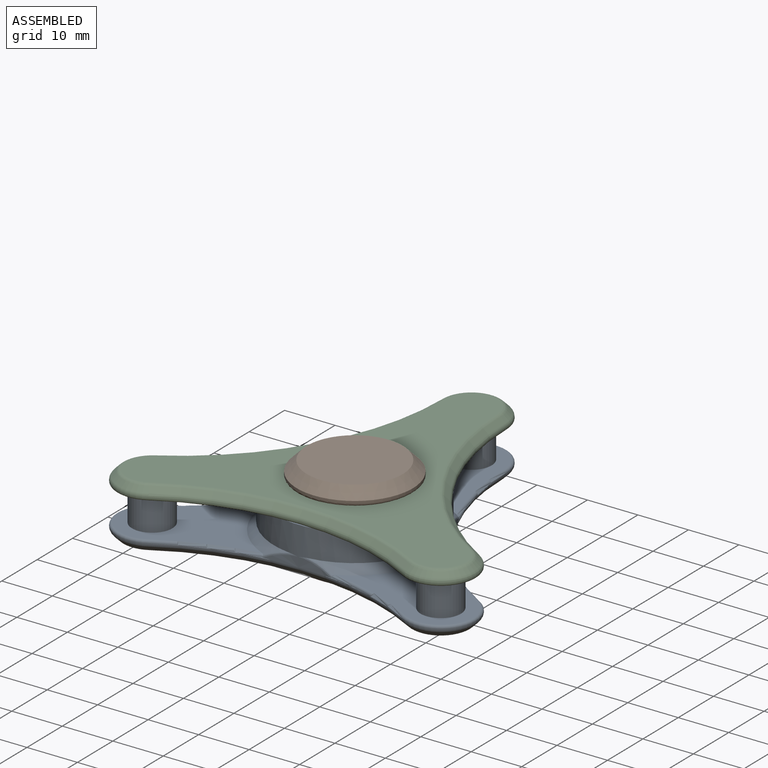
[diagram: assembled view]
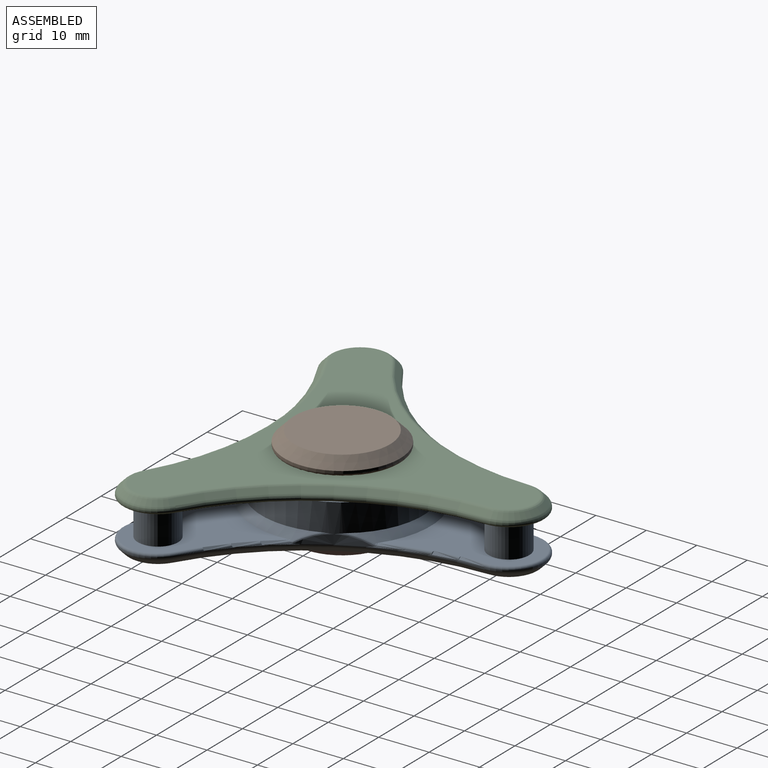
[diagram: assembled view, second angle]
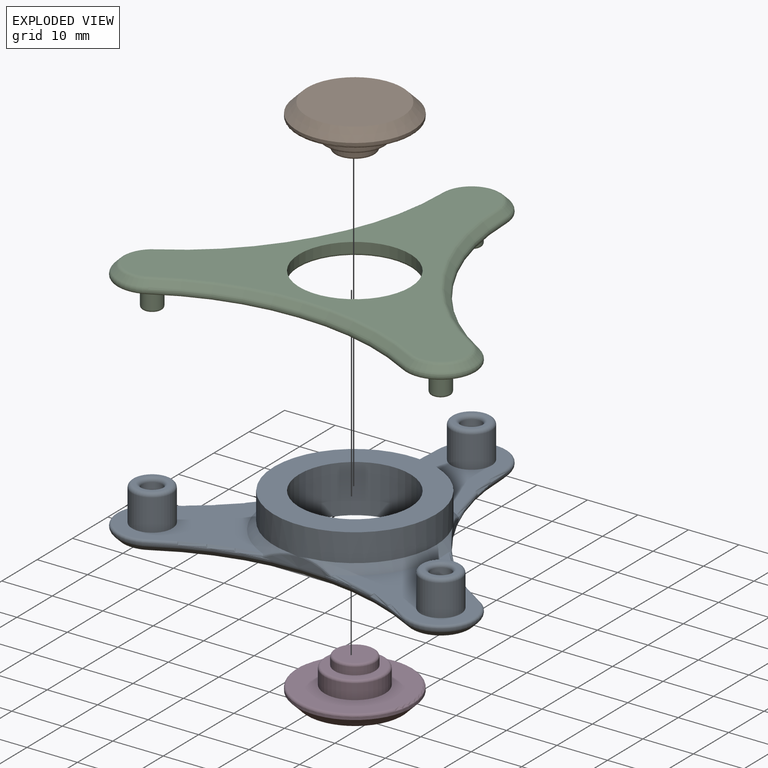
[diagram: exploded view]
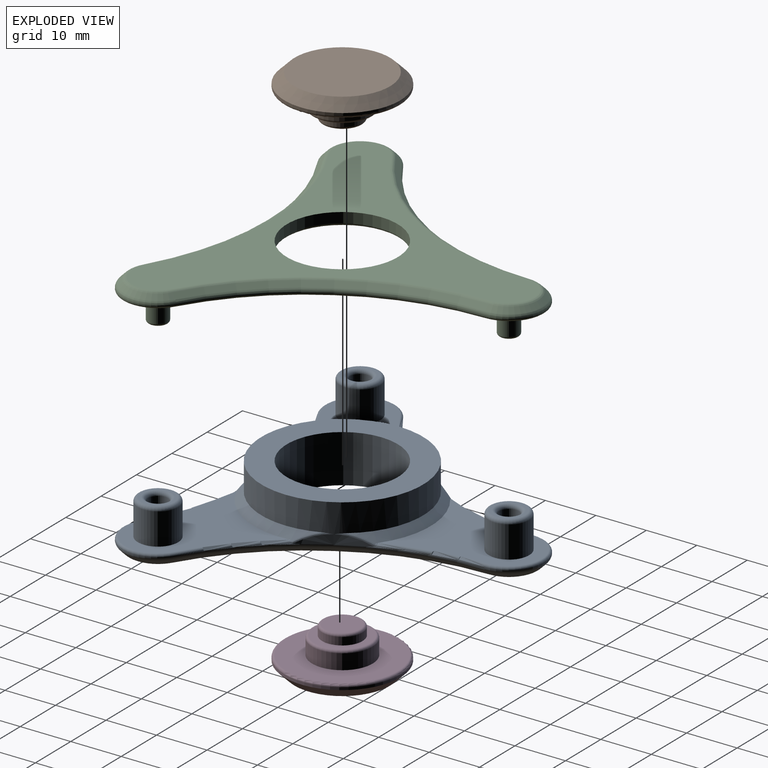
[diagram: exploded view, second angle]
ASSEMBLY  parts=4 mates=3
PART A: 91 faces, bbox 72.3x64.7x9.5 mm
  f0: cylinder r=7mm len=13.04mm, axis (0,0,1), area 1.9mm2, adj f1,f2,f59,f81
  f1: cylinder r=50mm len=25.01mm, axis (0,0,1), area 10.1mm2, adj f0,f7,f57,f58,f83
  f2: cylinder r=50mm len=18.4mm, axis (0,0,1), area 10.1mm2, adj f0,f7,f60,f61,f79
  f3: plane 67.35x59.69mm, normal (0,0,-1), area 1154.2mm2, adj f16,f67,f68,f69,f70,f71,f72,f73
  f4: plane 27.92x24.78mm, normal (0,0,1), area 261.4mm2, adj f5,f36,f58,f59,f61
  f5: cylinder r=4mm len=8mm, axis (0,0,-1), area 157.6mm2, adj f4,f46
  f6: plane 6.5x6.5mm, normal (0,0,1), area 9.4mm2, adj f43,f46
  f7: cylinder r=16.01mm len=32.02mm, axis (0,0,1), area 557.5mm2, adj f1,f2,f9,f10,f13,f14,f17,f34
  f8: cylinder r=7mm len=13.06mm, axis (0,0,1), area 1.9mm2, adj f9,f10,f65,f89
  f9: cylinder r=50mm len=18.38mm, axis (0,0,1), area 10.1mm2, adj f7,f8,f64,f66,f90
  f10: cylinder r=50mm len=25.04mm, axis (0,0,1), area 10.1mm2, adj f7,f8,f62,f63,f87
  f11: plane 27.92x24.78mm, normal (0,0,1), area 261.4mm2, adj f20,f35,f63,f65,f66
  f12: cylinder r=7mm len=14mm, axis (0,0,1), area 1.9mm2, adj f13,f14,f54,f82,f84
  f13: cylinder r=50mm len=24.94mm, axis (0,0,1), area 10.1mm2, adj f7,f12,f52,f53,f82
  f14: cylinder r=50mm len=24.97mm, axis (0,0,1), area 10.1mm2, adj f7,f12,f55,f56,f86
  f15: plane 25.31x20.5mm, normal (0,0,1), area 261.4mm2, adj f18,f34,f53,f54,f56
  f16: cylinder r=11.01mm len=22.02mm, axis (0,0,1), area 658.6mm2, adj f3,f17
  f17: plane 32.02x32.02mm, normal (0,0,1), area 424.4mm2, adj f7,f16
  f18: cylinder r=4mm len=8mm, axis (0,0,-1), area 157.6mm2, adj f15,f48
  f19: plane 6.5x6.5mm, normal (0,0,1), area 9.4mm2, adj f45,f48
  f20: cylinder r=4mm len=8mm, axis (0,0,-1), area 157.6mm2, adj f11,f47
  f21: plane 6.5x6.5mm, normal (0,0,1), area 9.4mm2, adj f44,f47
  f22: cone r=50mm half-angle=45deg, axis (0,0,-1), area 34.4mm2, adj f23,f24,f68,f79
  f23: cone r=16.01mm half-angle=45deg, axis (0,0,1), area 0.2mm2, adj f22,f25,f67,f80
  f24: cone r=5.5mm half-angle=45deg, axis (0,0,1), area 25.4mm2, adj f22,f26,f70,f81,f83
  f25: cone r=50mm half-angle=45deg, axis (0,0,-1), area 34.3mm2, adj f23,f27,f69,f82
  f26: cone r=50mm half-angle=45deg, axis (0,0,-1), area 34.3mm2, adj f24,f28,f72,f83
  f27: cone r=5.5mm half-angle=45deg, axis (0,0,1), area 25.3mm2, adj f25,f29,f71,f84
  f28: cone r=16.01mm half-angle=45deg, axis (0,0,1), area 0.2mm2, adj f26,f30,f74,f85
  f29: cone r=50mm half-angle=45deg, axis (0,0,-1), area 34.4mm2, adj f27,f31,f73,f86
  f30: cone r=50mm half-angle=45deg, axis (0,0,-1), area 34.4mm2, adj f28,f32,f76,f87
  f31: cone r=16.01mm half-angle=45deg, axis (0,0,1), area 0.2mm2, adj f29,f33,f75,f88
  f32: cone r=5.5mm half-angle=45deg, axis (0,0,1), area 25.4mm2, adj f30,f33,f78,f89,f90
  f33: cone r=50mm half-angle=45deg, axis (0,0,-1), area 34.3mm2, adj f31,f32,f77,f90
  f34: cone r=16.01mm half-angle=45deg, axis (0,0,-1), area 54.3mm2, adj f7,f15,f52,f53,f55,f56
  f35: cone r=16.01mm half-angle=45deg, axis (0,0,-1), area 54.3mm2, adj f7,f11,f62,f63,f64,f66
  f36: cone r=16.01mm half-angle=45deg, axis (0,0,-1), area 54.3mm2, adj f4,f7,f57,f58,f60,f61
  f37: cylinder r=2mm len=5.75mm, axis (0,0,1), area 72.3mm2, adj f45,f51
  f38: plane 3x3mm, normal (0,0,1), area 7.1mm2, adj f51
  f39: cylinder r=2mm len=5.75mm, axis (0,0,1), area 72.3mm2, adj f44,f50
  f40: plane 3x3mm, normal (0,0,1), area 7.1mm2, adj f50
  f41: cylinder r=2mm len=5.75mm, axis (0,0,1), area 72.3mm2, adj f43,f49
  f42: plane 3x3mm, normal (0,0,1), area 7.1mm2, adj f49
  f43: torus R=2.75mm, axis (0,0,1), area 16.8mm2, adj f6,f41
  f44: torus R=2.75mm, axis (0,0,1), area 16.8mm2, adj f21,f39
  f45: torus R=2.75mm, axis (0,0,1), area 16.8mm2, adj f19,f37
  f46: torus R=3.25mm, axis (0,0,1), area 27.6mm2, adj f5,f6
  f47: torus R=3.25mm, axis (0,0,1), area 27.6mm2, adj f20,f21
  f48: torus R=3.25mm, axis (0,0,1), area 27.6mm2, adj f18,f19
  f49: torus R=1.5mm, axis (0,0,1), area 9mm2, adj f41,f42
  f50: torus R=1.5mm, axis (0,0,1), area 9mm2, adj f39,f40
  f51: torus R=1.5mm, axis (0,0,1), area 9mm2, adj f37,f38
  f52: bspline ~7.81x4.03mm, area 2.5mm2, adj f7,f13,f34,f53
  f53: torus R=50.5mm, axis (0,0,-1), area 15.3mm2, adj f13,f15,f34,f52,f54
  f54: torus R=6.5mm, axis (0,0,-1), area 16.8mm2, adj f12,f15,f53,f56
  f55: bspline ~7.8x4.03mm, area 2.5mm2, adj f7,f14,f34,f56
  f56: torus R=50.5mm, axis (0,0,-1), area 15.3mm2, adj f14,f15,f34,f54,f55
  f57: bspline ~8.72x2.72mm, area 2.5mm2, adj f1,f7,f36,f58
  f58: torus R=50.5mm, axis (0,0,-1), area 15.3mm2, adj f1,f4,f36,f57,f59
  f59: torus R=6.5mm, axis (0,0,-1), area 16.8mm2, adj f0,f4,f58,f61
  f60: bspline ~7.35x4.91mm, area 2.5mm2, adj f2,f7,f36,f61
  f61: torus R=50.5mm, axis (0,0,-1), area 15.3mm2, adj f2,f4,f36,f59,f60
  f62: bspline ~8.71x2.71mm, area 2.5mm2, adj f7,f10,f35,f63
  f63: torus R=50.5mm, axis (0,0,-1), area 15.3mm2, adj f10,f11,f35,f62,f65
  f64: bspline ~7.35x4.92mm, area 2.5mm2, adj f7,f9,f35,f66
  f65: torus R=6.5mm, axis (0,0,-1), area 16.8mm2, adj f8,f11,f63,f66
  f66: torus R=50.5mm, axis (0,0,-1), area 15.3mm2, adj f9,f11,f35,f64,f65
  f67: torus R=14.1mm, axis (0,0,-1), area 0.1mm2, adj f3,f23,f68,f69
  f68: torus R=51.91mm, axis (0,0,-1), area 21.2mm2, adj f3,f22,f67,f70
  f69: torus R=51.91mm, axis (0,0,-1), area 21.2mm2, adj f3,f25,f67,f71
  f70: torus R=5.09mm, axis (0,0,-1), area 13.5mm2, adj f3,f24,f68,f72
  f71: torus R=5.09mm, axis (0,0,-1), area 13.4mm2, adj f3,f27,f69,f73
  f72: torus R=51.91mm, axis (0,0,-1), area 21.2mm2, adj f3,f26,f70,f74
  f73: torus R=51.91mm, axis (0,0,-1), area 21.2mm2, adj f3,f29,f71,f75
  f74: torus R=14.1mm, axis (0,0,-1), area 0.1mm2, adj f3,f28,f72,f76
  f75: torus R=14.1mm, axis (0,0,-1), area 0.1mm2, adj f3,f31,f73,f77
  f76: torus R=51.91mm, axis (0,0,-1), area 21.2mm2, adj f3,f30,f74,f78
  f77: torus R=51.91mm, axis (0,0,-1), area 21.2mm2, adj f3,f33,f75,f78
  f78: torus R=5.09mm, axis (0,0,-1), area 13.5mm2, adj f3,f32,f76,f77
  f79: torus R=51mm, axis (0,0,1), area 20.6mm2, adj f2,f22,f80,f81
  f80: torus R=15.01mm, axis (0,0,-1), area 0.1mm2, adj f7,f23,f79,f82
  f81: torus R=6mm, axis (0,0,-1), area 17mm2, adj f0,f24,f79,f83
  f82: torus R=51mm, axis (0,0,1), area 20.6mm2, adj f12,f13,f25,f80,f84
  f83: torus R=51mm, axis (0,0,1), area 20.6mm2, adj f1,f24,f26,f81,f85
  f84: torus R=6mm, axis (0,0,-1), area 17mm2, adj f12,f27,f82,f86
  f85: torus R=15.01mm, axis (0,0,-1), area 0.1mm2, adj f7,f28,f83,f87
  f86: torus R=51mm, axis (0,0,1), area 20.6mm2, adj f14,f29,f84,f88
  f87: torus R=51mm, axis (0,0,1), area 20.6mm2, adj f10,f30,f85,f89
  f88: torus R=15.01mm, axis (0,0,-1), area 0.1mm2, adj f7,f31,f86,f90
  f89: torus R=6mm, axis (0,0,-1), area 17mm2, adj f8,f32,f87,f90
  f90: torus R=51mm, axis (0,0,1), area 20.6mm2, adj f9,f32,f33,f88,f89
PART B: 11 faces, bbox 24.9x24.9x8.5 mm
  f0: cylinder r=11.5mm len=23mm, axis (0,0,-1), area 36.1mm2, adj f7,f10
  f1: plane 19x19mm, normal (0,0,1), area 283.5mm2, adj f7
  f2: plane 22x22mm, normal (0,0,-1), area 267mm2, adj f3,f10
  f3: cylinder r=6mm len=12mm, axis (0,0,1), area 113.1mm2, adj f2,f8
  f4: plane 11x11mm, normal (0,0,-1), area 44.8mm2, adj f6,f8
  f5: plane 7x7mm, normal (0,0,-1), area 38.5mm2, adj f9
  f6: cylinder r=4mm len=8mm, axis (0,0,1), area 37.7mm2, adj f4,f9
  f7: cone r=9.5mm half-angle=45deg, axis (0,0,-1), area 186.6mm2, adj f0,f1
  f8: torus R=5.5mm, axis (0,0,-1), area 28.7mm2, adj f3,f4
  f9: torus R=3.5mm, axis (0,0,-1), area 18.8mm2, adj f5,f6
  f10: torus R=11mm, axis (0,0,1), area 55.9mm2, adj f0,f2
PART C: 73 faces, bbox 72.3x64.7x8 mm
  f0: cylinder r=16.01mm len=0.14mm, axis (0,0,-1), area 0mm2, adj f6,f18,f46,f70
  f1: cylinder r=16.01mm len=0.14mm, axis (0,0,-1), area 0mm2, adj f16,f20,f43,f62
  f2: cylinder r=16.01mm len=0.16mm, axis (0,0,-1), area 0mm2, adj f3,f17,f38,f67
  f3: cylinder r=50mm len=25.01mm, axis (0,0,-1), area 2.2mm2, adj f2,f4,f40,f69
  f4: cylinder r=7mm len=13.04mm, axis (0,0,-1), area 1.9mm2, adj f3,f6,f42,f71
  f5: cylinder r=11.01mm len=22.02mm, axis (0,0,-1), area 138.4mm2, adj f8,f36
  f6: cylinder r=50mm len=18.4mm, axis (0,0,-1), area 2.2mm2, adj f0,f4,f44,f72
  f7: plane 70.18x62.52mm, normal (0,0,1), area 1386.7mm2, adj f9,f14,f21,f36,f61,f62,f63,f64
  f8: plane 67.35x59.69mm, normal (0,0,-1), area 1154.2mm2, adj f5,f49,f50,f51,f52,f53,f54,f55
  f9: cylinder r=1.99mm len=5mm, axis (0,0,-1), area 62.5mm2, adj f7,f11
  f10: plane 2.98x2.98mm, normal (0,0,1), area 7mm2, adj f11
  f11: torus R=1.49mm, axis (0,0,1), area 8.9mm2, adj f9,f10
  f12: plane 2.98x2.98mm, normal (0,0,1), area 7mm2, adj f13
  f13: torus R=1.49mm, axis (0,0,1), area 8.9mm2, adj f12,f14
  f14: cylinder r=1.99mm len=5mm, axis (0,0,-1), area 62.5mm2, adj f7,f13
  f15: cylinder r=7mm len=13.06mm, axis (0,0,-1), area 1.9mm2, adj f16,f17,f39,f63
  f16: cylinder r=50mm len=18.38mm, axis (0,0,-1), area 2.2mm2, adj f1,f15,f41,f61
  f17: cylinder r=50mm len=25.04mm, axis (0,0,-1), area 2.2mm2, adj f2,f15,f37,f65
  f18: cylinder r=50mm len=24.94mm, axis (0,0,-1), area 2.2mm2, adj f0,f19,f48,f68
  f19: cylinder r=7mm len=14mm, axis (0,0,-1), area 1.9mm2, adj f18,f20,f47,f48,f66
  f20: cylinder r=50mm len=24.97mm, axis (0,0,-1), area 2.2mm2, adj f1,f19,f45,f64
  f21: cylinder r=1.99mm len=5mm, axis (0,0,-1), area 62.5mm2, adj f7,f23
  f22: plane 2.98x2.98mm, normal (0,0,1), area 7mm2, adj f23
  f23: torus R=1.49mm, axis (0,0,1), area 8.9mm2, adj f21,f22
  f24: cone r=51.5mm half-angle=45deg, axis (0,0,-1), area 34.4mm2, adj f25,f26,f44,f57
  f25: cone r=7mm half-angle=45deg, axis (0,0,1), area 25.4mm2, adj f24,f27,f40,f42,f55
  f26: cone r=16.01mm half-angle=45deg, axis (0,0,1), area 0.2mm2, adj f24,f28,f46,f59
  f27: cone r=51.5mm half-angle=45deg, axis (0,0,-1), area 34.3mm2, adj f25,f29,f40,f53
  f28: cone r=51.5mm half-angle=45deg, axis (0,0,-1), area 34.3mm2, adj f26,f30,f48,f60
  f29: cone r=16.01mm half-angle=45deg, axis (0,0,1), area 0.2mm2, adj f27,f31,f38,f51
  f30: cone r=7mm half-angle=45deg, axis (0,0,1), area 25.3mm2, adj f28,f32,f47,f58
  f31: cone r=51.5mm half-angle=45deg, axis (0,0,-1), area 34.4mm2, adj f29,f33,f37,f49
  f32: cone r=51.5mm half-angle=45deg, axis (0,0,-1), area 34.4mm2, adj f30,f34,f45,f56
  f33: cone r=7mm half-angle=45deg, axis (0,0,1), area 25.4mm2, adj f31,f35,f39,f41,f50
  f34: cone r=16.01mm half-angle=45deg, axis (0,0,1), area 0.2mm2, adj f32,f35,f43,f54
  f35: cone r=51.5mm half-angle=45deg, axis (0,0,-1), area 34.3mm2, adj f33,f34,f41,f52
  f36: torus R=11.51mm, axis (0,0,1), area 55.2mm2, adj f5,f7
  f37: torus R=51mm, axis (0,0,1), area 20.6mm2, adj f17,f31,f38,f39
  f38: torus R=15.01mm, axis (0,0,-1), area 0.1mm2, adj f2,f29,f37,f40
  f39: torus R=6mm, axis (0,0,-1), area 17mm2, adj f15,f33,f37,f41
  f40: torus R=51mm, axis (0,0,1), area 20.6mm2, adj f3,f25,f27,f38,f42
  f41: torus R=51mm, axis (0,0,1), area 20.6mm2, adj f16,f33,f35,f39,f43
  f42: torus R=6mm, axis (0,0,-1), area 17mm2, adj f4,f25,f40,f44
  f43: torus R=15.01mm, axis (0,0,-1), area 0.1mm2, adj f1,f34,f41,f45
  f44: torus R=51mm, axis (0,0,1), area 20.6mm2, adj f6,f24,f42,f46
  f45: torus R=51mm, axis (0,0,1), area 20.6mm2, adj f20,f32,f43,f47
  f46: torus R=15.01mm, axis (0,0,-1), area 0.1mm2, adj f0,f26,f44,f48
  f47: torus R=6mm, axis (0,0,-1), area 17mm2, adj f19,f30,f45,f48
  f48: torus R=51mm, axis (0,0,1), area 20.6mm2, adj f18,f19,f28,f46,f47
  f49: torus R=51.91mm, axis (0,0,1), area 21.2mm2, adj f8,f31,f50,f51
  f50: torus R=5.09mm, axis (0,0,1), area 13.5mm2, adj f8,f33,f49,f52
  f51: torus R=14.1mm, axis (0,0,1), area 0.1mm2, adj f8,f29,f49,f53
  f52: torus R=51.91mm, axis (0,0,1), area 21.2mm2, adj f8,f35,f50,f54
  f53: torus R=51.91mm, axis (0,0,1), area 21.2mm2, adj f8,f27,f51,f55
  f54: torus R=14.1mm, axis (0,0,1), area 0.1mm2, adj f8,f34,f52,f56
  f55: torus R=5.09mm, axis (0,0,1), area 13.5mm2, adj f8,f25,f53,f57
  f56: torus R=51.91mm, axis (0,0,1), area 21.2mm2, adj f8,f32,f54,f58
  f57: torus R=51.91mm, axis (0,0,1), area 21.2mm2, adj f8,f24,f55,f59
  f58: torus R=5.09mm, axis (0,0,1), area 13.4mm2, adj f8,f30,f56,f60
  f59: torus R=14.1mm, axis (0,0,1), area 0.1mm2, adj f8,f26,f57,f60
  f60: torus R=51.91mm, axis (0,0,1), area 21.2mm2, adj f8,f28,f58,f59
  f61: torus R=50.5mm, axis (0,0,1), area 20.6mm2, adj f7,f16,f62,f63
  f62: torus R=15.51mm, axis (0,0,1), area 0.1mm2, adj f1,f7,f61,f64
  f63: torus R=6.5mm, axis (0,0,1), area 16.8mm2, adj f7,f15,f61,f65
  f64: torus R=50.5mm, axis (0,0,1), area 20.6mm2, adj f7,f20,f62,f66
  f65: torus R=50.5mm, axis (0,0,1), area 20.6mm2, adj f7,f17,f63,f67
  f66: torus R=6.5mm, axis (0,0,1), area 16.8mm2, adj f7,f19,f64,f68
  f67: torus R=15.51mm, axis (0,0,1), area 0.1mm2, adj f2,f7,f65,f69
  f68: torus R=50.5mm, axis (0,0,1), area 20.6mm2, adj f7,f18,f66,f70
  f69: torus R=50.5mm, axis (0,0,1), area 20.6mm2, adj f3,f7,f67,f71
  f70: torus R=15.51mm, axis (0,0,1), area 0.1mm2, adj f0,f7,f68,f72
  f71: torus R=6.5mm, axis (0,0,1), area 16.8mm2, adj f4,f7,f69,f72
  f72: torus R=50.5mm, axis (0,0,1), area 20.6mm2, adj f6,f7,f70,f71
PART D: same geometry as B
PLACE A t=(-4.78,-7.54,2.95)mm fixed
PLACE B rot(axis=(0,0,-1),46.9deg) t=(-4.78,-7.54,12.47)mm
PLACE C rot(axis=(0,1,0),180deg) t=(-4.78,-7.54,12.47)mm
PLACE D rot(axis=(0.78,0.63,0),180deg) t=(-4.78,-7.54,0.45)mm
MATE revolute C.f4 <-> A.f8  axis (0,0,-1) through (-33.37,-24.04,9.97)mm
MATE revolute B.f3 <-> C.f0  axis (0,0,-1) through (-4.78,-7.54,12.47)mm
MATE revolute D.f0 <-> A.f16  axis (0,0,1) through (-4.78,-7.54,0.45)mm
